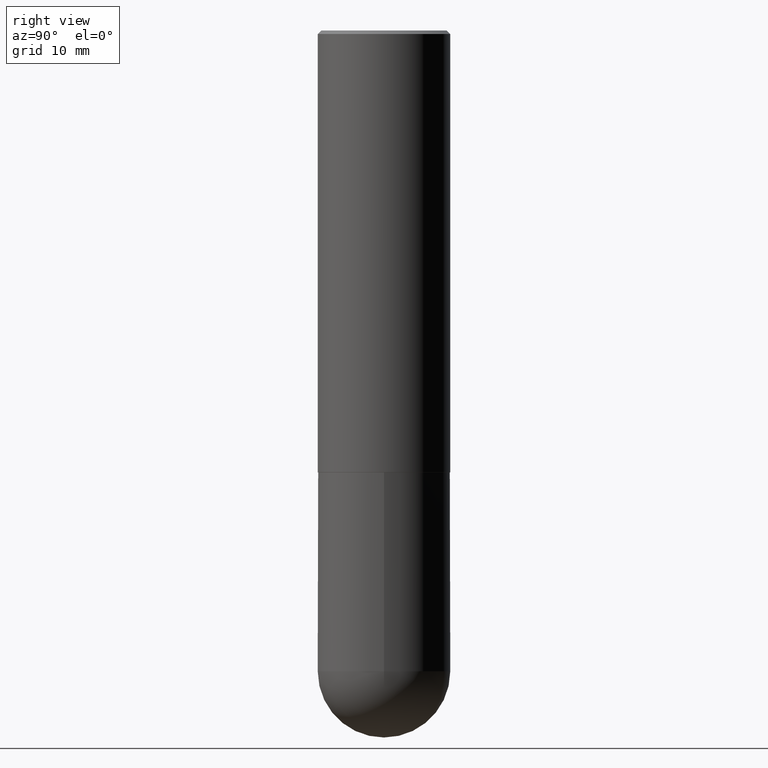
[diagram: clean part render]
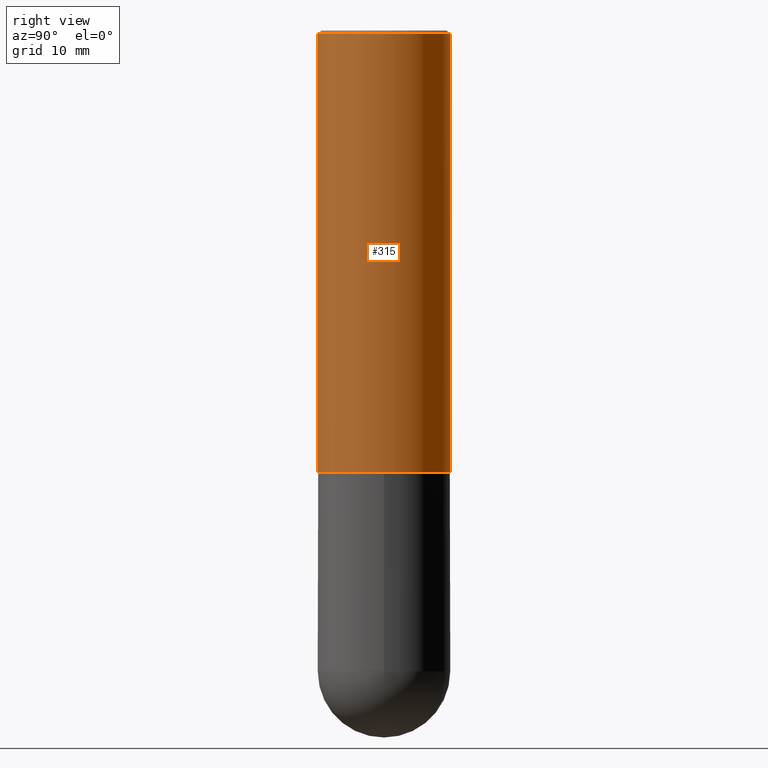
[diagram: same view with one face highlighted and labeled with its STEP entity id]
A machine part, right view. The second image highlights one B-rep face of the part: STEP entity #315.
In plain terms, the highlighted cylindrical surface (partial cylindrical patch) has radius 9.525 mm, axis along (-0, 0, 1).
Its self-contained STEP definition (entity closure, byte-faithful):
#3 = DIRECTION ( 'NONE',  ( -6.982962677686265922E-15, -1.000000000000000000, 3.494488891895536035E-15 ) ) ;
#5 = DIRECTION ( 'NONE',  ( -2.445579214634029192E-29, 3.491323227660272783E-15, 1.000000000000000000 ) ) ;
#18 = VERTEX_POINT ( 'NONE', #180 ) ;
#24 = ORIENTED_EDGE ( 'NONE', *, *, #81, .F. ) ;
#32 = CIRCLE ( 'NONE', #97, 0.3750000000000002776 ) ;
#36 = CARTESIAN_POINT ( 'NONE',  ( 6.111502457370440261E-29, -8.724816745923021924E-15, -2.499000000000000110 ) ) ;
#38 = CARTESIAN_POINT ( 'NONE',  ( 2.664535259100376486E-15, 0.3750000000000001665, -1.309246210372602885E-15 ) ) ;
#52 = EDGE_CURVE ( 'NONE', #18, #397, #365, .T. ) ;
#81 = EDGE_CURVE ( 'NONE', #397, #369, #235, .T. ) ;
#96 = DIRECTION ( 'NONE',  ( -2.445579214634028911E-29, 3.491323227660273177E-15, 1.000000000000000000 ) ) ;
#97 = AXIS2_PLACEMENT_3D ( 'NONE', #36, #222, #127 ) ;
#99 = EDGE_CURVE ( 'NONE', #327, #369, #358, .T. ) ;
#103 = ORIENTED_EDGE ( 'NONE', *, *, #271, .T. ) ;
#105 = CARTESIAN_POINT ( 'NONE',  ( -2.618611004132351200E-15, -0.3750000000000001665, 1.309246210372602885E-15 ) ) ;
#127 = DIRECTION ( 'NONE',  ( -6.982962677686266711E-15, -1.000000000000000000, 2.913971193241878794E-15 ) ) ;
#138 = DIRECTION ( 'NONE',  ( -2.445579214634028911E-29, 3.491323227660273177E-15, 1.000000000000000000 ) ) ;
#139 = CARTESIAN_POINT ( 'NONE',  ( 0.000000000000000000, 0.000000000000000000, 0.000000000000000000 ) ) ;
#147 = CARTESIAN_POINT ( 'NONE',  ( 2.618611004132350411E-15, 0.3749999999999999445, -0.02000000000000139513 ) ) ;
#158 = VECTOR ( 'NONE', #96, 39.37007874015748143 ) ;
#174 = ORIENTED_EDGE ( 'NONE', *, *, #99, .T. ) ;
#180 = CARTESIAN_POINT ( 'NONE',  ( -2.618611004132290852E-15, -0.3750000000000090483, -2.498999999999999222 ) ) ;
#183 = FACE_OUTER_BOUND ( 'NONE', #233, .T. ) ;
#189 = CARTESIAN_POINT ( 'NONE',  ( 4.891158429268078912E-31, -6.982646455320575000E-17, -0.02000000000000008715 ) ) ;
#206 = ORIENTED_EDGE ( 'NONE', *, *, #52, .F. ) ;
#222 = DIRECTION ( 'NONE',  ( -2.445579214634029192E-29, 3.491323227660272783E-15, 1.000000000000000000 ) ) ;
#233 = EDGE_LOOP ( 'NONE', ( #103, #174, #24, #206 ) ) ;
#235 = CIRCLE ( 'NONE', #343, 0.3750000000000000555 ) ;
#242 = DIRECTION ( 'NONE',  ( -2.445579214634029192E-29, 3.491323227660272783E-15, 1.000000000000000000 ) ) ;
#251 = AXIS2_PLACEMENT_3D ( 'NONE', #139, #242, #370 ) ;
#271 = EDGE_CURVE ( 'NONE', #18, #327, #32, .T. ) ;
#294 = VECTOR ( 'NONE', #138, 39.37007874015748143 ) ;
#315 = ADVANCED_FACE ( 'NONE', ( #183 ), #372, .T. ) ;
#316 = CARTESIAN_POINT ( 'NONE',  ( 2.664535259100408040E-15, 0.3749999999999915623, -2.499000000000001442 ) ) ;
#327 = VERTEX_POINT ( 'NONE', #316 ) ;
#343 = AXIS2_PLACEMENT_3D ( 'NONE', #189, #5, #3 ) ;
#346 = CARTESIAN_POINT ( 'NONE',  ( -2.572686749164323547E-15, -0.3750000000000001110, -0.01999999999999877570 ) ) ;
#358 = LINE ( 'NONE', #38, #158 ) ;
#365 = LINE ( 'NONE', #105, #294 ) ;
#369 = VERTEX_POINT ( 'NONE', #147 ) ;
#370 = DIRECTION ( 'NONE',  ( -6.982962677686266711E-15, -1.000000000000000000, 3.491323227660272783E-15 ) ) ;
#372 = CYLINDRICAL_SURFACE ( 'NONE', #251, 0.3750000000000001665 ) ;
#397 = VERTEX_POINT ( 'NONE', #346 ) ;